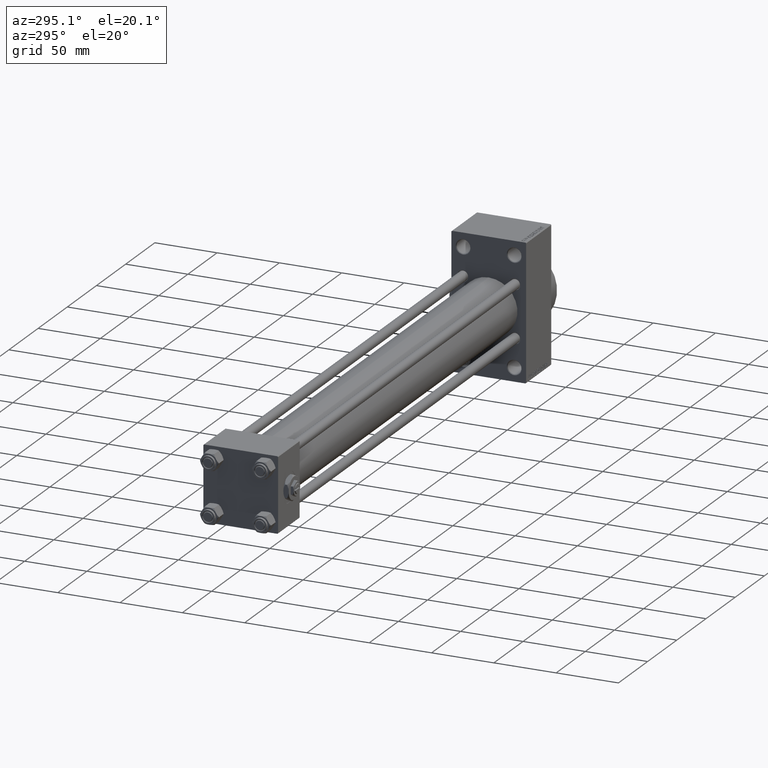
[diagram: clean part render]
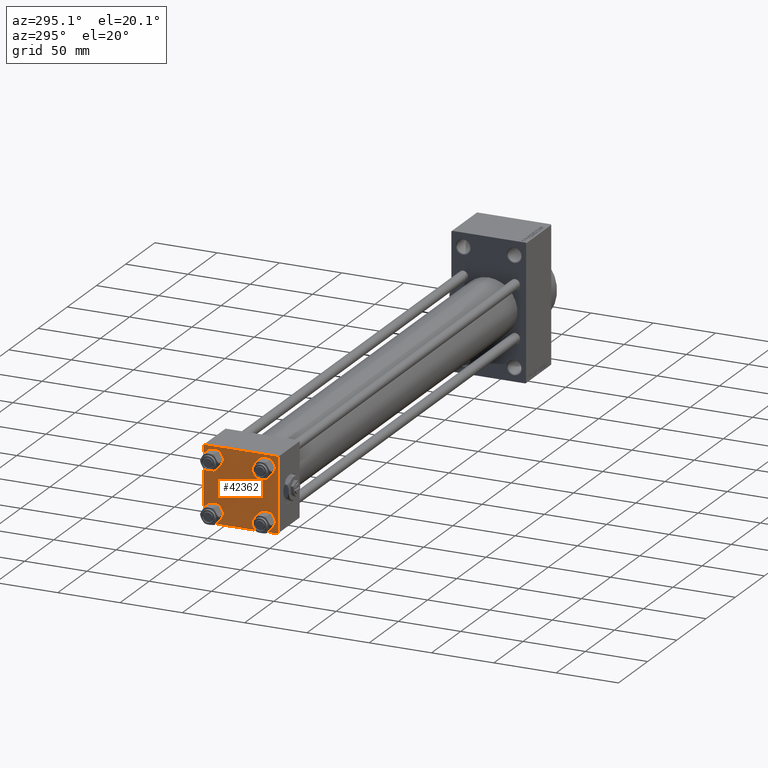
[diagram: same view with one face highlighted and labeled with its STEP entity id]
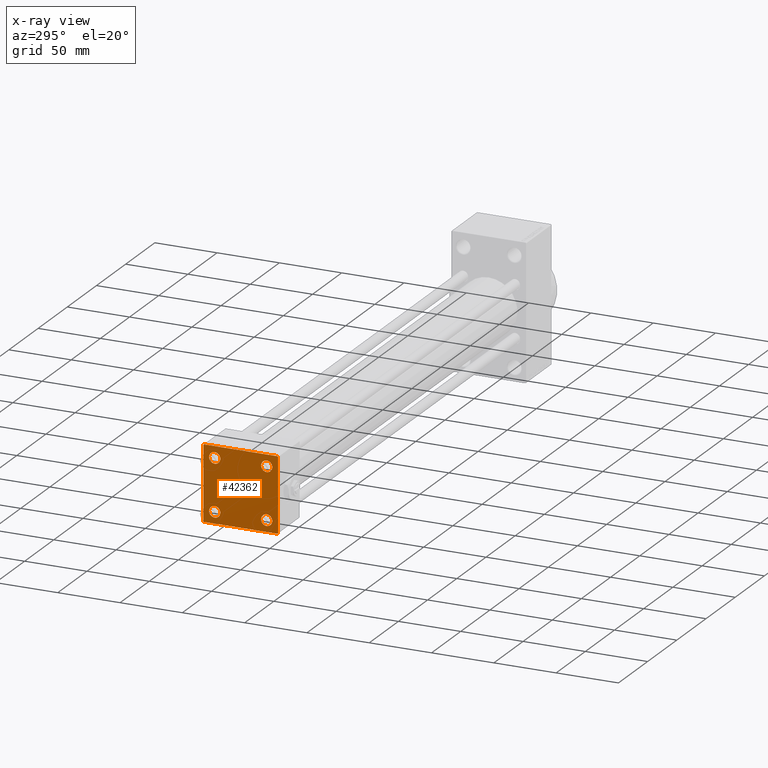
[diagram: x-ray of the same camera — body ghosted, the highlighted face saturated]
A machine part, auxiliary view. The second image highlights one B-rep face of the part: STEP entity #42362.
The next image is the same camera in x-ray: the body ghosted, the highlighted face saturated — about 0% of this face is hidden behind the body in this view.
In plain terms, the highlighted planar face has unit normal (-1, 0, 0).
Its self-contained STEP definition (entity closure, byte-faithful):
#1381 = DIRECTION ( 'NONE',  ( 0.000000000000000000, -0.7071067811865474617, 0.7071067811865474617 ) ) ;
#2003 = LINE ( 'NONE', #28502, #34236 ) ;
#2432 = VERTEX_POINT ( 'NONE', #23846 ) ;
#2668 = VECTOR ( 'NONE', #34313, 1000.000000000000114 ) ;
#2796 = CIRCLE ( 'NONE', #3562, 4.500000000000017764 ) ;
#2797 = LINE ( 'NONE', #8560, #12421 ) ;
#3214 = CIRCLE ( 'NONE', #13516, 4.500000000000017764 ) ;
#3562 = AXIS2_PLACEMENT_3D ( 'NONE', #19937, #30853, #19691 ) ;
#3734 = VERTEX_POINT ( 'NONE', #35634 ) ;
#4227 = DIRECTION ( 'NONE',  ( -0.000000000000000000, -0.7071067811865574537, -0.7071067811865376918 ) ) ;
#4317 = VECTOR ( 'NONE', #43258, 1000.000000000000000 ) ;
#4483 = EDGE_CURVE ( 'NONE', #26463, #2432, #2003, .T. ) ;
#4929 = EDGE_CURVE ( 'NONE', #48639, #42051, #16004, .T. ) ;
#5066 = AXIS2_PLACEMENT_3D ( 'NONE', #21536, #11511, #30349 ) ;
#5075 = EDGE_LOOP ( 'NONE', ( #37032, #11474, #43863, #21219, #45618, #16682, #42766, #14745 ) ) ;
#5599 = DIRECTION ( 'NONE',  ( 0.000000000000000000, 0.000000000000000000, 1.000000000000000000 ) ) ;
#5884 = CARTESIAN_POINT ( 'NONE',  ( 0.000000000000000000, 0.000000000000000000, 0.000000000000000000 ) ) ;
#5931 = DIRECTION ( 'NONE',  ( 1.000000000000000000, -0.000000000000000000, 0.000000000000000000 ) ) ;
#6177 = VERTEX_POINT ( 'NONE', #46832 ) ;
#6400 = CARTESIAN_POINT ( 'NONE',  ( 0.000000000000000000, 20.84999999999999787, -25.35000000000001918 ) ) ;
#7162 = VERTEX_POINT ( 'NONE', #10211 ) ;
#7337 = DIRECTION ( 'NONE',  ( 0.000000000000000000, -1.000000000000000000, -1.156482317317871725E-16 ) ) ;
#7958 = EDGE_LOOP ( 'NONE', ( #48698, #26731 ) ) ;
#8019 = LINE ( 'NONE', #18720, #40570 ) ;
#8560 = CARTESIAN_POINT ( 'NONE',  ( 0.000000000000000000, -29.75000000000001066, -29.75000000000001066 ) ) ;
#8758 = ORIENTED_EDGE ( 'NONE', *, *, #33544, .T. ) ;
#9238 = EDGE_CURVE ( 'NONE', #3734, #26699, #33577, .T. ) ;
#9304 = DIRECTION ( 'NONE',  ( 1.000000000000000000, -0.000000000000000000, 0.000000000000000000 ) ) ;
#9547 = CIRCLE ( 'NONE', #37265, 4.500000000000017764 ) ;
#10072 = FACE_BOUND ( 'NONE', #28603, .T. ) ;
#10211 = CARTESIAN_POINT ( 'NONE',  ( 0.000000000000000000, 29.99999999999999289, -29.50000000000000000 ) ) ;
#10415 = VERTEX_POINT ( 'NONE', #19752 ) ;
#10699 = AXIS2_PLACEMENT_3D ( 'NONE', #39330, #28172, #20739 ) ;
#10761 = EDGE_CURVE ( 'NONE', #28034, #32228, #2796, .T. ) ;
#11052 = CARTESIAN_POINT ( 'NONE',  ( 0.000000000000000000, 29.99999999999999289, 30.00000000000000000 ) ) ;
#11474 = ORIENTED_EDGE ( 'NONE', *, *, #35605, .T. ) ;
#11511 = DIRECTION ( 'NONE',  ( 1.000000000000000000, -0.000000000000000000, 0.000000000000000000 ) ) ;
#11975 = VECTOR ( 'NONE', #4227, 999.9999999999998863 ) ;
#12067 = CARTESIAN_POINT ( 'NONE',  ( 0.000000000000000000, -20.84999999999999076, 20.85000000000000497 ) ) ;
#12393 = CARTESIAN_POINT ( 'NONE',  ( 0.000000000000000000, 29.74999999999957723, -29.75000000000040501 ) ) ;
#12421 = VECTOR ( 'NONE', #1381, 1000.000000000000114 ) ;
#13516 = AXIS2_PLACEMENT_3D ( 'NONE', #32196, #5931, #35426 ) ;
#14745 = ORIENTED_EDGE ( 'NONE', *, *, #39645, .T. ) ;
#15549 = EDGE_CURVE ( 'NONE', #10415, #6177, #2797, .T. ) ;
#16004 = CIRCLE ( 'NONE', #43711, 4.500000000000017764 ) ;
#16037 = DIRECTION ( 'NONE',  ( 1.000000000000000000, -0.000000000000000000, 0.000000000000000000 ) ) ;
#16296 = EDGE_CURVE ( 'NONE', #26463, #6177, #28143, .T. ) ;
#16682 = ORIENTED_EDGE ( 'NONE', *, *, #4483, .T. ) ;
#17261 = EDGE_CURVE ( 'NONE', #32228, #28034, #33676, .T. ) ;
#17480 = VERTEX_POINT ( 'NONE', #47442 ) ;
#18386 = CARTESIAN_POINT ( 'NONE',  ( 0.000000000000000000, -30.00000000000000000, 29.49999999999999289 ) ) ;
#18720 = CARTESIAN_POINT ( 'NONE',  ( 0.000000000000000000, 29.99999999999999289, 30.00000000000000000 ) ) ;
#18738 = AXIS2_PLACEMENT_3D ( 'NONE', #12067, #16037, #23245 ) ;
#18835 = LINE ( 'NONE', #29981, #39488 ) ;
#19610 = ORIENTED_EDGE ( 'NONE', *, *, #34088, .T. ) ;
#19691 = DIRECTION ( 'NONE',  ( 0.000000000000000000, 0.000000000000000000, 1.000000000000000000 ) ) ;
#19752 = CARTESIAN_POINT ( 'NONE',  ( 0.000000000000000000, -29.50000000000000000, -30.00000000000000711 ) ) ;
#19937 = CARTESIAN_POINT ( 'NONE',  ( 0.000000000000000000, -20.84999999999999076, -20.85000000000000497 ) ) ;
#20058 = CARTESIAN_POINT ( 'NONE',  ( 0.000000000000000000, 20.84999999999999787, -16.34999999999998366 ) ) ;
#20295 = CARTESIAN_POINT ( 'NONE',  ( 0.000000000000000000, 20.84999999999999787, 16.34999999999998366 ) ) ;
#20360 = DIRECTION ( 'NONE',  ( 0.000000000000000000, 0.000000000000000000, 1.000000000000000000 ) ) ;
#20378 = EDGE_CURVE ( 'NONE', #26699, #3734, #37696, .T. ) ;
#20494 = FACE_BOUND ( 'NONE', #22909, .T. ) ;
#20604 = CARTESIAN_POINT ( 'NONE',  ( 0.000000000000000000, -20.84999999999999076, 20.85000000000000497 ) ) ;
#20739 = DIRECTION ( 'NONE',  ( 0.000000000000000000, 0.000000000000000000, 1.000000000000000000 ) ) ;
#20913 = AXIS2_PLACEMENT_3D ( 'NONE', #20604, #35977, #20360 ) ;
#21219 = ORIENTED_EDGE ( 'NONE', *, *, #15549, .T. ) ;
#21536 = CARTESIAN_POINT ( 'NONE',  ( 0.000000000000000000, 20.84999999999999787, -20.85000000000000142 ) ) ;
#22623 = VERTEX_POINT ( 'NONE', #20058 ) ;
#22681 = LINE ( 'NONE', #30586, #2668 ) ;
#22909 = EDGE_LOOP ( 'NONE', ( #23094, #19610 ) ) ;
#23094 = ORIENTED_EDGE ( 'NONE', *, *, #41170, .T. ) ;
#23245 = DIRECTION ( 'NONE',  ( 0.000000000000000000, 0.000000000000000000, 1.000000000000000000 ) ) ;
#23830 = VECTOR ( 'NONE', #7337, 1000.000000000000000 ) ;
#23846 = CARTESIAN_POINT ( 'NONE',  ( 0.000000000000000000, -29.49999999999998579, 29.99999999999999289 ) ) ;
#24167 = ORIENTED_EDGE ( 'NONE', *, *, #17261, .T. ) ;
#24443 = CARTESIAN_POINT ( 'NONE',  ( 0.000000000000000000, 20.84999999999999787, 20.85000000000000142 ) ) ;
#24720 = DIRECTION ( 'NONE',  ( 1.000000000000000000, -0.000000000000000000, 0.000000000000000000 ) ) ;
#24958 = DIRECTION ( 'NONE',  ( -1.000000000000000000, 0.000000000000000000, -0.000000000000000000 ) ) ;
#25082 = ORIENTED_EDGE ( 'NONE', *, *, #4929, .T. ) ;
#25202 = PLANE ( 'NONE',  #32896 ) ;
#25868 = CARTESIAN_POINT ( 'NONE',  ( 0.000000000000000000, 29.49999999999999289, 30.00000000000000000 ) ) ;
#26463 = VERTEX_POINT ( 'NONE', #18386 ) ;
#26699 = VERTEX_POINT ( 'NONE', #39361 ) ;
#26731 = ORIENTED_EDGE ( 'NONE', *, *, #9238, .T. ) ;
#26791 = LINE ( 'NONE', #12393, #11975 ) ;
#27060 = EDGE_LOOP ( 'NONE', ( #43786, #24167 ) ) ;
#28034 = VERTEX_POINT ( 'NONE', #43682 ) ;
#28143 = LINE ( 'NONE', #39305, #4317 ) ;
#28172 = DIRECTION ( 'NONE',  ( 1.000000000000000000, -0.000000000000000000, 0.000000000000000000 ) ) ;
#28181 = DIRECTION ( 'NONE',  ( 0.000000000000000000, 0.000000000000000000, 1.000000000000000000 ) ) ;
#28415 = FACE_OUTER_BOUND ( 'NONE', #5075, .T. ) ;
#28502 = CARTESIAN_POINT ( 'NONE',  ( -0.000000000000000000, -29.74999999999999645, 29.74999999999999645 ) ) ;
#28603 = EDGE_LOOP ( 'NONE', ( #8758, #25082 ) ) ;
#29385 = EDGE_CURVE ( 'NONE', #17480, #10415, #18835, .T. ) ;
#29508 = CARTESIAN_POINT ( 'NONE',  ( 0.000000000000000000, 29.99999999999999289, 29.50000000000000000 ) ) ;
#29898 = LINE ( 'NONE', #11052, #23830 ) ;
#29981 = CARTESIAN_POINT ( 'NONE',  ( 0.000000000000000000, 29.99999999999999289, -30.00000000000000000 ) ) ;
#30349 = DIRECTION ( 'NONE',  ( 0.000000000000000000, 0.000000000000000000, 1.000000000000000000 ) ) ;
#30586 = CARTESIAN_POINT ( 'NONE',  ( 0.000000000000000000, 29.74999999999999645, 29.74999999999999645 ) ) ;
#30853 = DIRECTION ( 'NONE',  ( 1.000000000000000000, -0.000000000000000000, 0.000000000000000000 ) ) ;
#31652 = FACE_BOUND ( 'NONE', #27060, .T. ) ;
#32147 = FACE_BOUND ( 'NONE', #7958, .T. ) ;
#32196 = CARTESIAN_POINT ( 'NONE',  ( 0.000000000000000000, 20.84999999999999787, 20.85000000000000142 ) ) ;
#32228 = VERTEX_POINT ( 'NONE', #42888 ) ;
#32896 = AXIS2_PLACEMENT_3D ( 'NONE', #5884, #24958, #40062 ) ;
#33544 = EDGE_CURVE ( 'NONE', #42051, #48639, #3214, .T. ) ;
#33577 = CIRCLE ( 'NONE', #20913, 4.500000000000017764 ) ;
#33598 = DIRECTION ( 'NONE',  ( 0.000000000000000000, 0.000000000000000000, -1.000000000000000000 ) ) ;
#33676 = CIRCLE ( 'NONE', #10699, 4.500000000000017764 ) ;
#34088 = EDGE_CURVE ( 'NONE', #48712, #22623, #9547, .T. ) ;
#34236 = VECTOR ( 'NONE', #47586, 1000.000000000000114 ) ;
#34313 = DIRECTION ( 'NONE',  ( 0.000000000000000000, 0.7071067811865474617, -0.7071067811865474617 ) ) ;
#35426 = DIRECTION ( 'NONE',  ( 0.000000000000000000, 0.000000000000000000, 1.000000000000000000 ) ) ;
#35605 = EDGE_CURVE ( 'NONE', #7162, #17480, #26791, .T. ) ;
#35634 = CARTESIAN_POINT ( 'NONE',  ( 0.000000000000000000, -20.84999999999999076, 16.34999999999998721 ) ) ;
#35977 = DIRECTION ( 'NONE',  ( 1.000000000000000000, -0.000000000000000000, 0.000000000000000000 ) ) ;
#36125 = CARTESIAN_POINT ( 'NONE',  ( 0.000000000000000000, 20.84999999999999787, -20.85000000000000142 ) ) ;
#37032 = ORIENTED_EDGE ( 'NONE', *, *, #37723, .T. ) ;
#37092 = VERTEX_POINT ( 'NONE', #29508 ) ;
#37265 = AXIS2_PLACEMENT_3D ( 'NONE', #36125, #24720, #28181 ) ;
#37674 = DIRECTION ( 'NONE',  ( 0.000000000000000000, -1.000000000000000000, -1.156482317317871725E-16 ) ) ;
#37696 = CIRCLE ( 'NONE', #18738, 4.500000000000017764 ) ;
#37723 = EDGE_CURVE ( 'NONE', #37092, #7162, #8019, .T. ) ;
#39305 = CARTESIAN_POINT ( 'NONE',  ( 0.000000000000000000, -30.00000000000000000, 29.99999999999999289 ) ) ;
#39330 = CARTESIAN_POINT ( 'NONE',  ( 0.000000000000000000, -20.84999999999999076, -20.85000000000000497 ) ) ;
#39361 = CARTESIAN_POINT ( 'NONE',  ( 0.000000000000000000, -20.84999999999999076, 25.35000000000002274 ) ) ;
#39488 = VECTOR ( 'NONE', #37674, 1000.000000000000000 ) ;
#39645 = EDGE_CURVE ( 'NONE', #41457, #37092, #22681, .T. ) ;
#40062 = DIRECTION ( 'NONE',  ( -0.000000000000000000, 0.000000000000000000, 1.000000000000000000 ) ) ;
#40359 = CARTESIAN_POINT ( 'NONE',  ( 0.000000000000000000, 20.84999999999999787, 25.35000000000001918 ) ) ;
#40570 = VECTOR ( 'NONE', #33598, 1000.000000000000000 ) ;
#41170 = EDGE_CURVE ( 'NONE', #22623, #48712, #47808, .T. ) ;
#41457 = VERTEX_POINT ( 'NONE', #25868 ) ;
#42051 = VERTEX_POINT ( 'NONE', #40359 ) ;
#42362 = ADVANCED_FACE ( 'NONE', ( #32147, #31652, #20494, #10072, #28415 ), #25202, .T. ) ;
#42766 = ORIENTED_EDGE ( 'NONE', *, *, #45687, .F. ) ;
#42888 = CARTESIAN_POINT ( 'NONE',  ( 0.000000000000000000, -20.84999999999999076, -25.35000000000002274 ) ) ;
#43258 = DIRECTION ( 'NONE',  ( 0.000000000000000000, 0.000000000000000000, -1.000000000000000000 ) ) ;
#43682 = CARTESIAN_POINT ( 'NONE',  ( 0.000000000000000000, -20.84999999999999076, -16.34999999999998721 ) ) ;
#43711 = AXIS2_PLACEMENT_3D ( 'NONE', #24443, #9304, #5599 ) ;
#43786 = ORIENTED_EDGE ( 'NONE', *, *, #10761, .T. ) ;
#43863 = ORIENTED_EDGE ( 'NONE', *, *, #29385, .T. ) ;
#45618 = ORIENTED_EDGE ( 'NONE', *, *, #16296, .F. ) ;
#45687 = EDGE_CURVE ( 'NONE', #41457, #2432, #29898, .T. ) ;
#46832 = CARTESIAN_POINT ( 'NONE',  ( 0.000000000000000000, -30.00000000000000000, -29.50000000000001776 ) ) ;
#47442 = CARTESIAN_POINT ( 'NONE',  ( 0.000000000000000000, 29.49999999999997868, -30.00000000000000000 ) ) ;
#47586 = DIRECTION ( 'NONE',  ( -0.000000000000000000, 0.7071067811865474617, 0.7071067811865474617 ) ) ;
#47808 = CIRCLE ( 'NONE', #5066, 4.500000000000017764 ) ;
#48639 = VERTEX_POINT ( 'NONE', #20295 ) ;
#48698 = ORIENTED_EDGE ( 'NONE', *, *, #20378, .T. ) ;
#48712 = VERTEX_POINT ( 'NONE', #6400 ) ;